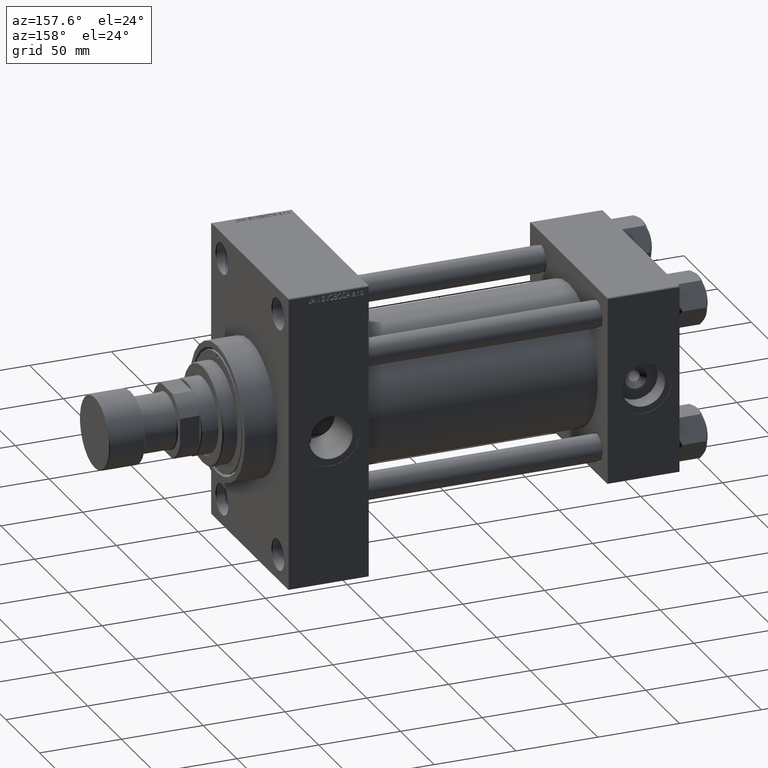
[diagram: clean part render]
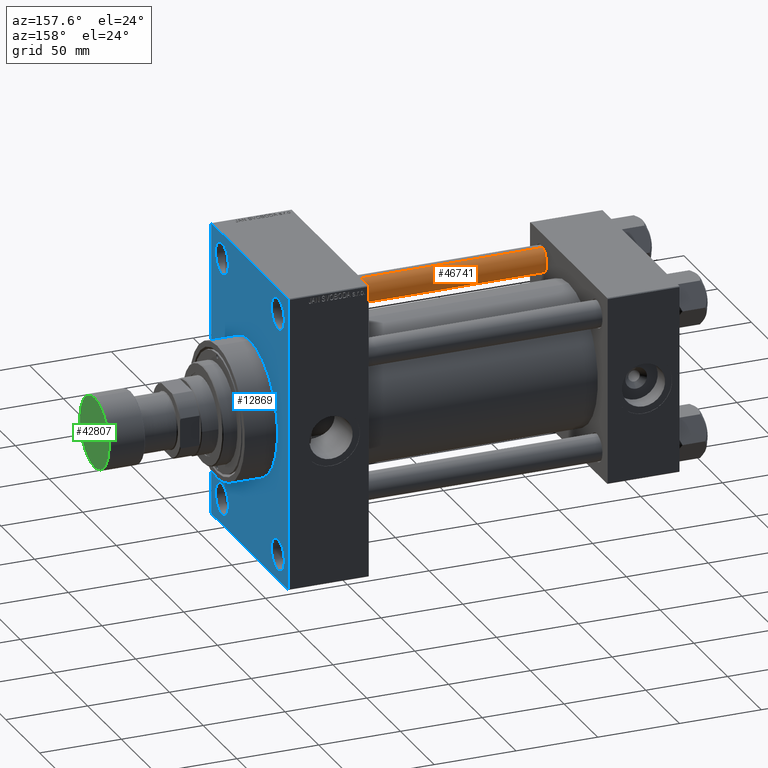
[diagram: same view with three faces highlighted in distinct colors, each labeled with its STEP entity id]
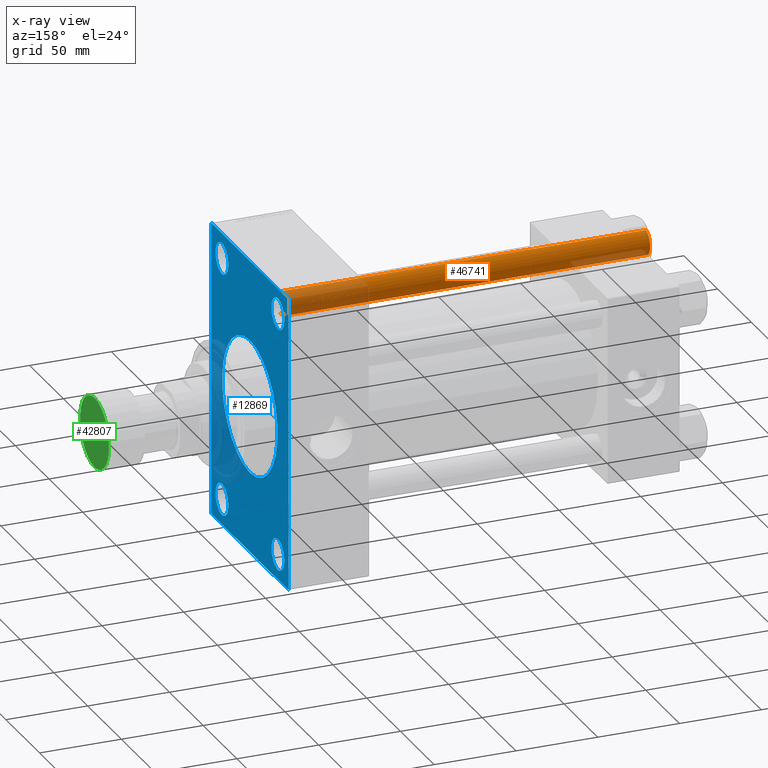
[diagram: x-ray of the same camera — body ghosted, the three highlighted faces saturated]
A machine part, auxiliary view with three faces highlighted in distinct colors.
The next image is the same camera in x-ray (body ghosted, the three faces saturated) — at least one of them is partly hidden behind the body in this view.
Their STEP definitions:

[orange] entity #46741 — the highlighted cylindrical surface (edge-blend (fillet) strip) has radius 8 mm, axis along (1, 0, 0).
#577 = VERTEX_POINT ( 'NONE', #30292 ) ;
#1586 = VERTEX_POINT ( 'NONE', #8335 ) ;
#2604 = CARTESIAN_POINT ( 'NONE',  ( -8.000000000000000000, 0.000000000000000000, 223.0000000000000000 ) ) ;
#3030 = CARTESIAN_POINT ( 'NONE',  ( 8.000000000000000000, 9.797174393178823685E-16, 0.5000000000001669775 ) ) ;
#3152 = ORIENTED_EDGE ( 'NONE', *, *, #26760, .T. ) ;
#3333 = CIRCLE ( 'NONE', #45467, 8.000000000000000000 ) ;
#3534 = VECTOR ( 'NONE', #46155, 1000.000000000000000 ) ;
#4824 = CYLINDRICAL_SURFACE ( 'NONE', #9168, 8.000000000000000000 ) ;
#5501 = VECTOR ( 'NONE', #9694, 1000.000000000000000 ) ;
#6446 = DIRECTION ( 'NONE',  ( -1.000000000000000000, 0.000000000000000000, 0.000000000000000000 ) ) ;
#7701 = EDGE_LOOP ( 'NONE', ( #35301, #21141, #40973, #3152 ) ) ;
#8335 = CARTESIAN_POINT ( 'NONE',  ( -8.000000000000000000, 0.000000000000000000, 222.5000000000001137 ) ) ;
#9168 = AXIS2_PLACEMENT_3D ( 'NONE', #12139, #24749, #6446 ) ;
#9694 = DIRECTION ( 'NONE',  ( -0.000000000000000000, -0.000000000000000000, -1.000000000000000000 ) ) ;
#12139 = CARTESIAN_POINT ( 'NONE',  ( 0.000000000000000000, 0.000000000000000000, 223.0000000000000000 ) ) ;
#13119 = LINE ( 'NONE', #2604, #5501 ) ;
#14304 = DIRECTION ( 'NONE',  ( 0.000000000000000000, 0.000000000000000000, -1.000000000000000000 ) ) ;
#16915 = CIRCLE ( 'NONE', #37980, 8.000000000000000000 ) ;
#18067 = EDGE_CURVE ( 'NONE', #1586, #577, #13119, .T. ) ;
#18446 = DIRECTION ( 'NONE',  ( 1.000000000000000000, 0.000000000000000000, 0.000000000000000000 ) ) ;
#21141 = ORIENTED_EDGE ( 'NONE', *, *, #45586, .T. ) ;
#24749 = DIRECTION ( 'NONE',  ( -0.000000000000000000, -0.000000000000000000, -1.000000000000000000 ) ) ;
#25002 = DIRECTION ( 'NONE',  ( 1.000000000000000000, 0.000000000000000000, 0.000000000000000000 ) ) ;
#25282 = CARTESIAN_POINT ( 'NONE',  ( 0.000000000000000000, 0.000000000000000000, 222.5000000000001137 ) ) ;
#26456 = VERTEX_POINT ( 'NONE', #39240 ) ;
#26760 = EDGE_CURVE ( 'NONE', #577, #34825, #3333, .T. ) ;
#26835 = CARTESIAN_POINT ( 'NONE',  ( 8.000000000000000000, 9.797174393178823685E-16, 223.0000000000000000 ) ) ;
#27931 = DIRECTION ( 'NONE',  ( -0.000000000000000000, -0.000000000000000000, 1.000000000000000000 ) ) ;
#30292 = CARTESIAN_POINT ( 'NONE',  ( -8.000000000000000000, 0.000000000000000000, 0.5000000000001669775 ) ) ;
#31224 = LINE ( 'NONE', #26835, #3534 ) ;
#31595 = CARTESIAN_POINT ( 'NONE',  ( 0.000000000000000000, 0.000000000000000000, 0.5000000000001669775 ) ) ;
#31827 = FACE_OUTER_BOUND ( 'NONE', #7701, .T. ) ;
#34825 = VERTEX_POINT ( 'NONE', #3030 ) ;
#35301 = ORIENTED_EDGE ( 'NONE', *, *, #36361, .F. ) ;
#36361 = EDGE_CURVE ( 'NONE', #26456, #34825, #31224, .T. ) ;
#37980 = AXIS2_PLACEMENT_3D ( 'NONE', #25282, #14304, #18446 ) ;
#39240 = CARTESIAN_POINT ( 'NONE',  ( 8.000000000000000000, 9.797174393178823685E-16, 222.5000000000001137 ) ) ;
#40973 = ORIENTED_EDGE ( 'NONE', *, *, #18067, .T. ) ;
#45467 = AXIS2_PLACEMENT_3D ( 'NONE', #31595, #27931, #25002 ) ;
#45586 = EDGE_CURVE ( 'NONE', #26456, #1586, #16915, .T. ) ;
#46155 = DIRECTION ( 'NONE',  ( -0.000000000000000000, -0.000000000000000000, -1.000000000000000000 ) ) ;
#46741 = ADVANCED_FACE ( 'NONE', ( #31827 ), #4824, .T. ) ;

[blue] entity #12869 — the highlighted planar face has unit normal (-1, 0, 0).
#826 = DIRECTION ( 'NONE',  ( 0.000000000000000000, 0.000000000000000000, 1.000000000000000000 ) ) ;
#979 = VERTEX_POINT ( 'NONE', #30660 ) ;
#1243 = DIRECTION ( 'NONE',  ( 0.000000000000000000, -0.7071067811865474617, 0.7071067811865474617 ) ) ;
#1354 = CIRCLE ( 'NONE', #10709, 41.00000000000000000 ) ;
#1504 = CARTESIAN_POINT ( 'NONE',  ( 239.0000000000000000, 41.50000000000000711, 74.50000000000001421 ) ) ;
#1695 = CIRCLE ( 'NONE', #19624, 9.500000000000008882 ) ;
#1716 = DIRECTION ( 'NONE',  ( 0.000000000000000000, 0.000000000000000000, -1.000000000000000000 ) ) ;
#1918 = CIRCLE ( 'NONE', #15219, 9.500000000000008882 ) ;
#2971 = EDGE_LOOP ( 'NONE', ( #33529, #20359 ) ) ;
#3371 = VERTEX_POINT ( 'NONE', #8330 ) ;
#3640 = DIRECTION ( 'NONE',  ( 0.000000000000000000, 0.000000000000000000, 1.000000000000000000 ) ) ;
#3661 = EDGE_CURVE ( 'NONE', #42317, #32236, #11104, .T. ) ;
#3805 = LINE ( 'NONE', #44604, #34300 ) ;
#3877 = DIRECTION ( 'NONE',  ( 0.000000000000000000, -1.000000000000000000, -1.206764157201257045E-16 ) ) ;
#4092 = CARTESIAN_POINT ( 'NONE',  ( 239.0000000000000000, -57.50000000000002132, 89.49999999999994316 ) ) ;
#5012 = CARTESIAN_POINT ( 'NONE',  ( 239.0000000000000000, 0.000000000000000000, 0.000000000000000000 ) ) ;
#5236 = CIRCLE ( 'NONE', #8340, 9.500000000000008882 ) ;
#5460 = DIRECTION ( 'NONE',  ( 0.000000000000000000, 0.000000000000000000, 1.000000000000000000 ) ) ;
#5693 = EDGE_LOOP ( 'NONE', ( #23831, #17428 ) ) ;
#5907 = AXIS2_PLACEMENT_3D ( 'NONE', #1504, #16422, #20315 ) ;
#6417 = EDGE_CURVE ( 'NONE', #979, #39635, #41490, .T. ) ;
#6704 = EDGE_CURVE ( 'NONE', #35478, #44733, #16166, .T. ) ;
#6900 = VERTEX_POINT ( 'NONE', #8291 ) ;
#7100 = ORIENTED_EDGE ( 'NONE', *, *, #12312, .F. ) ;
#7205 = ORIENTED_EDGE ( 'NONE', *, *, #18600, .F. ) ;
#7349 = CARTESIAN_POINT ( 'NONE',  ( 239.0000000000000000, 5.021051876504148963E-15, -41.00000000000000000 ) ) ;
#7482 = VECTOR ( 'NONE', #11066, 1000.000000000000000 ) ;
#7653 = AXIS2_PLACEMENT_3D ( 'NONE', #19361, #8373, #19609 ) ;
#8195 = FACE_BOUND ( 'NONE', #2971, .T. ) ;
#8291 = CARTESIAN_POINT ( 'NONE',  ( 239.0000000000000000, -41.49999999999999289, -83.99999999999998579 ) ) ;
#8330 = CARTESIAN_POINT ( 'NONE',  ( 239.0000000000000000, 56.99999999999995026, -90.00000000000000000 ) ) ;
#8340 = AXIS2_PLACEMENT_3D ( 'NONE', #30561, #33515, #15204 ) ;
#8373 = DIRECTION ( 'NONE',  ( -1.000000000000000000, 0.000000000000000000, -0.000000000000000000 ) ) ;
#8917 = DIRECTION ( 'NONE',  ( -0.000000000000000000, 0.000000000000000000, 1.000000000000000000 ) ) ;
#9281 = EDGE_CURVE ( 'NONE', #46276, #6900, #1695, .T. ) ;
#9402 = AXIS2_PLACEMENT_3D ( 'NONE', #38841, #35181, #1716 ) ;
#9406 = VECTOR ( 'NONE', #48006, 1000.000000000000000 ) ;
#9509 = AXIS2_PLACEMENT_3D ( 'NONE', #42578, #11827, #826 ) ;
#9593 = VERTEX_POINT ( 'NONE', #44600 ) ;
#9803 = FACE_BOUND ( 'NONE', #19659, .T. ) ;
#10709 = AXIS2_PLACEMENT_3D ( 'NONE', #17124, #32007, #46943 ) ;
#10726 = VERTEX_POINT ( 'NONE', #11290 ) ;
#10840 = EDGE_CURVE ( 'NONE', #32236, #16256, #20544, .T. ) ;
#11037 = VERTEX_POINT ( 'NONE', #7349 ) ;
#11066 = DIRECTION ( 'NONE',  ( 0.000000000000000000, 0.7071067811865573427, -0.7071067811865378028 ) ) ;
#11104 = LINE ( 'NONE', #25505, #9406 ) ;
#11128 = DIRECTION ( 'NONE',  ( 0.000000000000000000, -1.000000000000000000, -1.206764157201257291E-16 ) ) ;
#11290 = CARTESIAN_POINT ( 'NONE',  ( 239.0000000000000000, 41.50000000000000711, -84.00000000000000000 ) ) ;
#11681 = DIRECTION ( 'NONE',  ( -1.000000000000000000, 0.000000000000000000, -0.000000000000000000 ) ) ;
#11827 = DIRECTION ( 'NONE',  ( -1.000000000000000000, 0.000000000000000000, -0.000000000000000000 ) ) ;
#11869 = CIRCLE ( 'NONE', #36054, 9.500000000000008882 ) ;
#12312 = EDGE_CURVE ( 'NONE', #35478, #9593, #44667, .T. ) ;
#12781 = CARTESIAN_POINT ( 'NONE',  ( 239.0000000000000000, -41.49999999999999289, 74.50000000000001421 ) ) ;
#12869 = ADVANCED_FACE ( 'NONE', ( #23088, #9803, #8195, #37990, #34570, #38474 ), #26977, .F. ) ;
#12899 = ORIENTED_EDGE ( 'NONE', *, *, #19617, .T. ) ;
#13407 = CARTESIAN_POINT ( 'NONE',  ( 239.0000000000000000, 0.000000000000000000, 41.00000000000000000 ) ) ;
#14192 = CARTESIAN_POINT ( 'NONE',  ( 239.0000000000000000, -57.00000000000001421, 89.99999999999997158 ) ) ;
#14493 = CARTESIAN_POINT ( 'NONE',  ( 239.0000000000000000, -57.00000000000002132, -90.00000000000001421 ) ) ;
#14986 = CARTESIAN_POINT ( 'NONE',  ( 239.0000000000000000, 41.50000000000000711, 84.00000000000001421 ) ) ;
#15204 = DIRECTION ( 'NONE',  ( 0.000000000000000000, 0.000000000000000000, 1.000000000000000000 ) ) ;
#15219 = AXIS2_PLACEMENT_3D ( 'NONE', #41003, #11681, #3640 ) ;
#15527 = DIRECTION ( 'NONE',  ( -1.000000000000000000, 0.000000000000000000, -0.000000000000000000 ) ) ;
#15836 = CARTESIAN_POINT ( 'NONE',  ( 239.0000000000000000, 57.49999999999997868, -90.00000000000000000 ) ) ;
#16166 = LINE ( 'NONE', #30311, #43838 ) ;
#16256 = VERTEX_POINT ( 'NONE', #17861 ) ;
#16422 = DIRECTION ( 'NONE',  ( -1.000000000000000000, 0.000000000000000000, -0.000000000000000000 ) ) ;
#17124 = CARTESIAN_POINT ( 'NONE',  ( 239.0000000000000000, 0.000000000000000000, 0.000000000000000000 ) ) ;
#17428 = ORIENTED_EDGE ( 'NONE', *, *, #27366, .T. ) ;
#17861 = CARTESIAN_POINT ( 'NONE',  ( 239.0000000000000000, -57.50000000000002132, -89.49999999999997158 ) ) ;
#17979 = CIRCLE ( 'NONE', #9402, 41.00000000000000000 ) ;
#18600 = EDGE_CURVE ( 'NONE', #11037, #42581, #17979, .T. ) ;
#19322 = CIRCLE ( 'NONE', #7653, 9.500000000000008882 ) ;
#19361 = CARTESIAN_POINT ( 'NONE',  ( 239.0000000000000000, -41.49999999999999289, 74.50000000000001421 ) ) ;
#19609 = DIRECTION ( 'NONE',  ( 0.000000000000000000, 0.000000000000000000, 1.000000000000000000 ) ) ;
#19617 = EDGE_CURVE ( 'NONE', #44733, #42317, #3805, .T. ) ;
#19624 = AXIS2_PLACEMENT_3D ( 'NONE', #26077, #30455, #40981 ) ;
#19659 = EDGE_LOOP ( 'NONE', ( #25152, #41136 ) ) ;
#19992 = VECTOR ( 'NONE', #3877, 1000.000000000000000 ) ;
#20315 = DIRECTION ( 'NONE',  ( 0.000000000000000000, 0.000000000000000000, 1.000000000000000000 ) ) ;
#20359 = ORIENTED_EDGE ( 'NONE', *, *, #45042, .T. ) ;
#20544 = LINE ( 'NONE', #28093, #23557 ) ;
#20801 = VERTEX_POINT ( 'NONE', #44802 ) ;
#21117 = VERTEX_POINT ( 'NONE', #31787 ) ;
#21235 = LINE ( 'NONE', #32705, #45329 ) ;
#21263 = CARTESIAN_POINT ( 'NONE',  ( 239.0000000000000000, -41.49999999999999289, -64.99999999999997158 ) ) ;
#21310 = CIRCLE ( 'NONE', #39231, 9.500000000000008882 ) ;
#22087 = ORIENTED_EDGE ( 'NONE', *, *, #6704, .T. ) ;
#22251 = EDGE_CURVE ( 'NONE', #3371, #9593, #21235, .T. ) ;
#22434 = LINE ( 'NONE', #15836, #19992 ) ;
#23088 = FACE_BOUND ( 'NONE', #5693, .T. ) ;
#23557 = VECTOR ( 'NONE', #42770, 1000.000000000000000 ) ;
#23618 = DIRECTION ( 'NONE',  ( 0.000000000000000000, 0.000000000000000000, 1.000000000000000000 ) ) ;
#23831 = ORIENTED_EDGE ( 'NONE', *, *, #47025, .T. ) ;
#23852 = CARTESIAN_POINT ( 'NONE',  ( 239.0000000000000000, 41.50000000000000711, -74.50000000000000000 ) ) ;
#23909 = CARTESIAN_POINT ( 'NONE',  ( 239.0000000000000000, -41.49999999999999289, 65.00000000000000000 ) ) ;
#24584 = EDGE_LOOP ( 'NONE', ( #47215, #36372, #39398, #30117, #7100, #22087, #12899, #41073 ) ) ;
#24657 = DIRECTION ( 'NONE',  ( -0.000000000000000000, 0.7071067811865378028, 0.7071067811865573427 ) ) ;
#24801 = AXIS2_PLACEMENT_3D ( 'NONE', #5012, #15527, #8917 ) ;
#25075 = CARTESIAN_POINT ( 'NONE',  ( 239.0000000000000000, 57.49999999999997158, 89.50000000000004263 ) ) ;
#25152 = ORIENTED_EDGE ( 'NONE', *, *, #35193, .T. ) ;
#25505 = CARTESIAN_POINT ( 'NONE',  ( 239.0000000000000000, -57.50000000000002132, 89.49999999999994316 ) ) ;
#25537 = EDGE_CURVE ( 'NONE', #10726, #40001, #11869, .T. ) ;
#26077 = CARTESIAN_POINT ( 'NONE',  ( 239.0000000000000000, -41.49999999999999289, -74.49999999999998579 ) ) ;
#26472 = CARTESIAN_POINT ( 'NONE',  ( 239.0000000000000000, 57.00000000000002842, 89.99999999999998579 ) ) ;
#26977 = PLANE ( 'NONE',  #24801 ) ;
#27366 = EDGE_CURVE ( 'NONE', #21117, #41557, #21310, .T. ) ;
#28057 = CARTESIAN_POINT ( 'NONE',  ( 239.0000000000000000, 41.50000000000000711, -64.99999999999998579 ) ) ;
#28093 = CARTESIAN_POINT ( 'NONE',  ( 239.0000000000000000, -57.50000000000002132, 89.99999999999997158 ) ) ;
#29609 = LINE ( 'NONE', #14493, #7482 ) ;
#29738 = CARTESIAN_POINT ( 'NONE',  ( 239.0000000000000000, 57.49999999999997158, 89.99999999999998579 ) ) ;
#30117 = ORIENTED_EDGE ( 'NONE', *, *, #22251, .T. ) ;
#30311 = CARTESIAN_POINT ( 'NONE',  ( 239.0000000000000000, 57.00000000000002842, 89.99999999999998579 ) ) ;
#30455 = DIRECTION ( 'NONE',  ( -1.000000000000000000, 0.000000000000000000, -0.000000000000000000 ) ) ;
#30561 = CARTESIAN_POINT ( 'NONE',  ( 239.0000000000000000, 41.50000000000000711, -74.50000000000000000 ) ) ;
#30660 = CARTESIAN_POINT ( 'NONE',  ( 239.0000000000000000, 41.50000000000000711, 65.00000000000000000 ) ) ;
#31787 = CARTESIAN_POINT ( 'NONE',  ( 239.0000000000000000, -41.49999999999999289, 84.00000000000001421 ) ) ;
#32007 = DIRECTION ( 'NONE',  ( 1.000000000000000000, 0.000000000000000000, 0.000000000000000000 ) ) ;
#32236 = VERTEX_POINT ( 'NONE', #4092 ) ;
#32705 = CARTESIAN_POINT ( 'NONE',  ( 239.0000000000000000, 57.49999999999997868, -89.49999999999995737 ) ) ;
#32845 = ORIENTED_EDGE ( 'NONE', *, *, #38945, .T. ) ;
#33515 = DIRECTION ( 'NONE',  ( -1.000000000000000000, 0.000000000000000000, -0.000000000000000000 ) ) ;
#33529 = ORIENTED_EDGE ( 'NONE', *, *, #25537, .T. ) ;
#34164 = VECTOR ( 'NONE', #41471, 1000.000000000000000 ) ;
#34300 = VECTOR ( 'NONE', #11128, 1000.000000000000000 ) ;
#34570 = FACE_BOUND ( 'NONE', #39440, .T. ) ;
#35181 = DIRECTION ( 'NONE',  ( 1.000000000000000000, 0.000000000000000000, 0.000000000000000000 ) ) ;
#35193 = EDGE_CURVE ( 'NONE', #6900, #46276, #1918, .T. ) ;
#35255 = DIRECTION ( 'NONE',  ( -1.000000000000000000, 0.000000000000000000, -0.000000000000000000 ) ) ;
#35478 = VERTEX_POINT ( 'NONE', #25075 ) ;
#36054 = AXIS2_PLACEMENT_3D ( 'NONE', #23852, #45856, #23618 ) ;
#36335 = CIRCLE ( 'NONE', #5907, 9.500000000000008882 ) ;
#36372 = ORIENTED_EDGE ( 'NONE', *, *, #37127, .T. ) ;
#37127 = EDGE_CURVE ( 'NONE', #16256, #20801, #29609, .T. ) ;
#37990 = FACE_BOUND ( 'NONE', #39850, .T. ) ;
#38474 = FACE_OUTER_BOUND ( 'NONE', #24584, .T. ) ;
#38841 = CARTESIAN_POINT ( 'NONE',  ( 239.0000000000000000, 0.000000000000000000, 0.000000000000000000 ) ) ;
#38945 = EDGE_CURVE ( 'NONE', #39635, #979, #36335, .T. ) ;
#39231 = AXIS2_PLACEMENT_3D ( 'NONE', #12781, #35255, #5460 ) ;
#39398 = ORIENTED_EDGE ( 'NONE', *, *, #40266, .F. ) ;
#39440 = EDGE_LOOP ( 'NONE', ( #46626, #7205 ) ) ;
#39635 = VERTEX_POINT ( 'NONE', #14986 ) ;
#39850 = EDGE_LOOP ( 'NONE', ( #40584, #32845 ) ) ;
#40001 = VERTEX_POINT ( 'NONE', #28057 ) ;
#40266 = EDGE_CURVE ( 'NONE', #3371, #20801, #22434, .T. ) ;
#40584 = ORIENTED_EDGE ( 'NONE', *, *, #6417, .T. ) ;
#40981 = DIRECTION ( 'NONE',  ( 0.000000000000000000, 0.000000000000000000, 1.000000000000000000 ) ) ;
#41003 = CARTESIAN_POINT ( 'NONE',  ( 239.0000000000000000, -41.49999999999999289, -74.49999999999998579 ) ) ;
#41073 = ORIENTED_EDGE ( 'NONE', *, *, #3661, .T. ) ;
#41136 = ORIENTED_EDGE ( 'NONE', *, *, #9281, .T. ) ;
#41471 = DIRECTION ( 'NONE',  ( 0.000000000000000000, 3.854941057726238467E-17, -1.000000000000000000 ) ) ;
#41490 = CIRCLE ( 'NONE', #9509, 9.500000000000008882 ) ;
#41557 = VERTEX_POINT ( 'NONE', #23909 ) ;
#42317 = VERTEX_POINT ( 'NONE', #14192 ) ;
#42578 = CARTESIAN_POINT ( 'NONE',  ( 239.0000000000000000, 41.50000000000000711, 74.50000000000001421 ) ) ;
#42581 = VERTEX_POINT ( 'NONE', #13407 ) ;
#42770 = DIRECTION ( 'NONE',  ( 0.000000000000000000, 0.000000000000000000, -1.000000000000000000 ) ) ;
#43838 = VECTOR ( 'NONE', #1243, 1000.000000000000114 ) ;
#44600 = CARTESIAN_POINT ( 'NONE',  ( 239.0000000000000000, 57.49999999999997868, -89.49999999999990052 ) ) ;
#44604 = CARTESIAN_POINT ( 'NONE',  ( 239.0000000000000000, 57.49999999999997158, 89.99999999999998579 ) ) ;
#44667 = LINE ( 'NONE', #29738, #34164 ) ;
#44733 = VERTEX_POINT ( 'NONE', #26472 ) ;
#44802 = CARTESIAN_POINT ( 'NONE',  ( 239.0000000000000000, -57.00000000000002132, -90.00000000000001421 ) ) ;
#45042 = EDGE_CURVE ( 'NONE', #40001, #10726, #5236, .T. ) ;
#45329 = VECTOR ( 'NONE', #24657, 1000.000000000000000 ) ;
#45856 = DIRECTION ( 'NONE',  ( -1.000000000000000000, 0.000000000000000000, -0.000000000000000000 ) ) ;
#46195 = EDGE_CURVE ( 'NONE', #42581, #11037, #1354, .T. ) ;
#46276 = VERTEX_POINT ( 'NONE', #21263 ) ;
#46626 = ORIENTED_EDGE ( 'NONE', *, *, #46195, .F. ) ;
#46943 = DIRECTION ( 'NONE',  ( 0.000000000000000000, 0.000000000000000000, -1.000000000000000000 ) ) ;
#47025 = EDGE_CURVE ( 'NONE', #41557, #21117, #19322, .T. ) ;
#47215 = ORIENTED_EDGE ( 'NONE', *, *, #10840, .T. ) ;
#48006 = DIRECTION ( 'NONE',  ( -0.000000000000000000, -0.7071067811865328068, -0.7071067811865622277 ) ) ;

[green] entity #42807 — the highlighted planar face has unit normal (1, 0, 0).
#4516 = VERTEX_POINT ( 'NONE', #31209 ) ;
#5932 = AXIS2_PLACEMENT_3D ( 'NONE', #25529, #28950, #43146 ) ;
#7233 = DIRECTION ( 'NONE',  ( 0.000000000000000000, 0.000000000000000000, 1.000000000000000000 ) ) ;
#7582 = EDGE_CURVE ( 'NONE', #29627, #4516, #43083, .T. ) ;
#9185 = AXIS2_PLACEMENT_3D ( 'NONE', #38998, #30934, #27277 ) ;
#12474 = EDGE_CURVE ( 'NONE', #4516, #29627, #30234, .T. ) ;
#13586 = PLANE ( 'NONE',  #5932 ) ;
#22113 = DIRECTION ( 'NONE',  ( 1.000000000000000000, 0.000000000000000000, 0.000000000000000000 ) ) ;
#25529 = CARTESIAN_POINT ( 'NONE',  ( 0.000000000000000000, 0.000000000000000000, 0.000000000000000000 ) ) ;
#25773 = CARTESIAN_POINT ( 'NONE',  ( 0.000000000000000000, 0.000000000000000000, 0.000000000000000000 ) ) ;
#27277 = DIRECTION ( 'NONE',  ( 1.000000000000000000, 0.000000000000000000, 0.000000000000000000 ) ) ;
#28950 = DIRECTION ( 'NONE',  ( 0.000000000000000000, 0.000000000000000000, 1.000000000000000000 ) ) ;
#29627 = VERTEX_POINT ( 'NONE', #46884 ) ;
#30234 = CIRCLE ( 'NONE', #9185, 21.50000000000000000 ) ;
#30535 = EDGE_LOOP ( 'NONE', ( #44341, #47752 ) ) ;
#30934 = DIRECTION ( 'NONE',  ( 0.000000000000000000, 0.000000000000000000, 1.000000000000000000 ) ) ;
#31209 = CARTESIAN_POINT ( 'NONE',  ( 21.50000000000000000, 0.000000000000000000, 0.000000000000000000 ) ) ;
#38998 = CARTESIAN_POINT ( 'NONE',  ( 0.000000000000000000, 0.000000000000000000, 0.000000000000000000 ) ) ;
#40442 = FACE_OUTER_BOUND ( 'NONE', #30535, .T. ) ;
#42807 = ADVANCED_FACE ( 'NONE', ( #40442 ), #13586, .T. ) ;
#43083 = CIRCLE ( 'NONE', #47772, 21.50000000000000000 ) ;
#43146 = DIRECTION ( 'NONE',  ( 1.000000000000000000, 0.000000000000000000, -0.000000000000000000 ) ) ;
#44341 = ORIENTED_EDGE ( 'NONE', *, *, #12474, .T. ) ;
#46884 = CARTESIAN_POINT ( 'NONE',  ( -21.50000000000000000, 2.663606788145493022E-15, 0.000000000000000000 ) ) ;
#47752 = ORIENTED_EDGE ( 'NONE', *, *, #7582, .T. ) ;
#47772 = AXIS2_PLACEMENT_3D ( 'NONE', #25773, #7233, #22113 ) ;